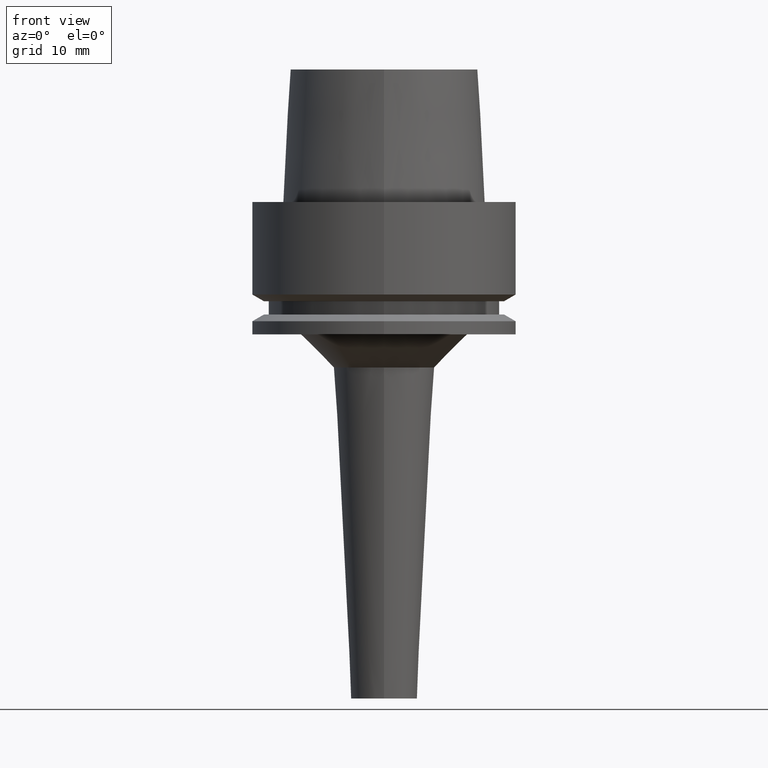
[diagram: clean part render]
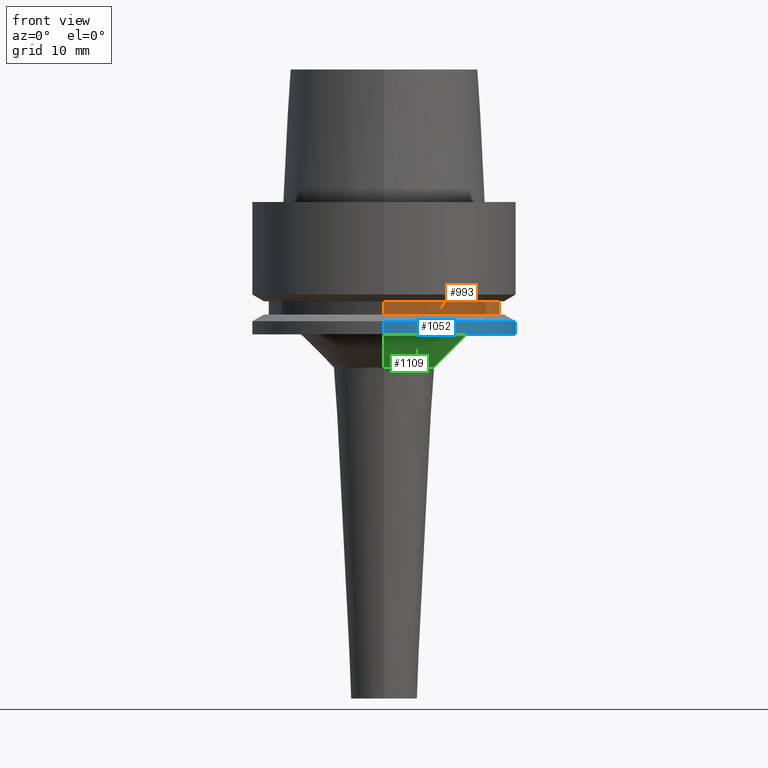
[diagram: same view with three faces highlighted in distinct colors, each labeled with its STEP entity id]
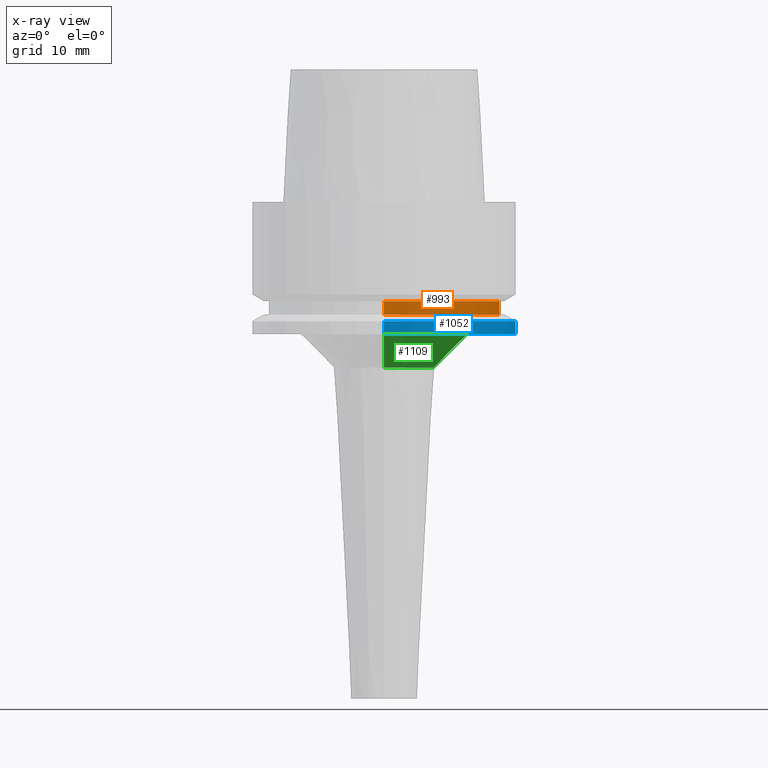
[diagram: x-ray of the same camera — body ghosted, the three highlighted faces saturated]
A machine part, front view with three faces highlighted in distinct colors.
The next image is the same camera in x-ray (body ghosted, the three faces saturated) — at least one of them is partly hidden behind the body in this view.
Their STEP definitions:

[orange] entity #993 — the highlighted cylindrical surface (partial cylindrical patch) has radius 17.4 mm, axis along (0, 0, 1).
#164=CARTESIAN_POINT('',(0.E0,0.E0,-1.5E1));
#165=DIRECTION('',(0.E0,0.E0,-1.E0));
#166=DIRECTION('',(0.E0,1.E0,0.E0));
#167=AXIS2_PLACEMENT_3D('',#164,#165,#166);
#172=DIRECTION('',(0.E0,0.E0,-1.E0));
#173=VECTOR('',#172,2.E0);
#174=CARTESIAN_POINT('',(0.E0,-1.74E1,-1.5E1));
#175=LINE('',#174,#173);
#179=DIRECTION('',(0.E0,0.E0,-1.E0));
#180=VECTOR('',#179,2.E0);
#181=CARTESIAN_POINT('',(0.E0,1.74E1,-1.5E1));
#182=LINE('',#181,#180);
#202=CARTESIAN_POINT('',(0.E0,0.E0,-1.7E1));
#203=DIRECTION('',(0.E0,0.E0,1.E0));
#204=DIRECTION('',(0.E0,-1.E0,0.E0));
#205=AXIS2_PLACEMENT_3D('',#202,#203,#204);
#744=CARTESIAN_POINT('',(0.E0,-1.74E1,-1.5E1));
#745=CARTESIAN_POINT('',(0.E0,1.74E1,-1.5E1));
#746=VERTEX_POINT('',#744);
#747=VERTEX_POINT('',#745);
#748=CARTESIAN_POINT('',(0.E0,1.74E1,-1.7E1));
#749=VERTEX_POINT('',#748);
#750=CARTESIAN_POINT('',(0.E0,-1.74E1,-1.7E1));
#751=VERTEX_POINT('',#750);
#981=CARTESIAN_POINT('',(0.E0,0.E0,-7.975E1));
#982=DIRECTION('',(0.E0,0.E0,1.E0));
#983=DIRECTION('',(0.E0,1.E0,0.E0));
#984=AXIS2_PLACEMENT_3D('',#981,#982,#983);
#985=CYLINDRICAL_SURFACE('',#984,1.74E1);
#986=ORIENTED_EDGE('',*,*,#971,.T.);
#988=ORIENTED_EDGE('',*,*,#987,.F.);
#989=ORIENTED_EDGE('',*,*,#974,.F.);
#990=ORIENTED_EDGE('',*,*,#961,.F.);
#991=EDGE_LOOP('',(#986,#988,#989,#990));
#992=FACE_OUTER_BOUND('',#991,.F.);
#168=CIRCLE('',#167,1.74E1);
#206=CIRCLE('',#205,1.74E1);
#961=EDGE_CURVE('',#747,#746,#168,.T.);
#971=EDGE_CURVE('',#747,#749,#182,.T.);
#974=EDGE_CURVE('',#746,#751,#175,.T.);
#987=EDGE_CURVE('',#751,#749,#206,.T.);
#993=ADVANCED_FACE('',(#992),#985,.T.);

[blue] entity #1052 — the highlighted cylindrical surface (partial cylindrical patch) has radius 20 mm, axis along (0, 0, 1).
#240=CARTESIAN_POINT('',(0.E0,0.E0,-1.802072594462E1));
#241=DIRECTION('',(0.E0,0.E0,-1.E0));
#242=DIRECTION('',(0.E0,1.E0,0.E0));
#243=AXIS2_PLACEMENT_3D('',#240,#241,#242);
#248=DIRECTION('',(0.E0,-1.723159621265E-13,-1.E0));
#249=VECTOR('',#248,1.979274055381E0);
#250=CARTESIAN_POINT('',(0.E0,2.E1,-1.802072594462E1));
#251=LINE('',#250,#249);
#255=DIRECTION('',(0.E0,1.723159621265E-13,-1.E0));
#256=VECTOR('',#255,1.979274055381E0);
#257=CARTESIAN_POINT('',(0.E0,-2.E1,-1.802072594462E1));
#258=LINE('',#257,#256);
#262=CARTESIAN_POINT('',(0.E0,0.E0,-2.E1));
#263=DIRECTION('',(0.E0,0.E0,1.E0));
#264=DIRECTION('',(0.E0,-1.E0,0.E0));
#265=AXIS2_PLACEMENT_3D('',#262,#263,#264);
#756=CARTESIAN_POINT('',(0.E0,2.E1,-1.802072594462E1));
#757=VERTEX_POINT('',#756);
#758=CARTESIAN_POINT('',(0.E0,-2.E1,-1.802072594462E1));
#759=VERTEX_POINT('',#758);
#760=CARTESIAN_POINT('',(0.E0,2.E1,-2.E1));
#761=VERTEX_POINT('',#760);
#762=CARTESIAN_POINT('',(0.E0,-2.E1,-2.E1));
#763=VERTEX_POINT('',#762);
#1038=CARTESIAN_POINT('',(0.E0,0.E0,-7.975E1));
#1039=DIRECTION('',(0.E0,0.E0,1.E0));
#1040=DIRECTION('',(0.E0,1.E0,0.E0));
#1041=AXIS2_PLACEMENT_3D('',#1038,#1039,#1040);
#1042=CYLINDRICAL_SURFACE('',#1041,2.E1);
#1044=ORIENTED_EDGE('',*,*,#1043,.T.);
#1046=ORIENTED_EDGE('',*,*,#1045,.F.);
#1048=ORIENTED_EDGE('',*,*,#1047,.F.);
#1049=ORIENTED_EDGE('',*,*,#1031,.F.);
#1050=EDGE_LOOP('',(#1044,#1046,#1048,#1049));
#1051=FACE_OUTER_BOUND('',#1050,.F.);
#244=CIRCLE('',#243,2.E1);
#266=CIRCLE('',#265,2.E1);
#1031=EDGE_CURVE('',#757,#759,#244,.T.);
#1043=EDGE_CURVE('',#757,#761,#251,.T.);
#1045=EDGE_CURVE('',#763,#761,#266,.T.);
#1047=EDGE_CURVE('',#759,#763,#258,.T.);
#1052=ADVANCED_FACE('',(#1051),#1042,.T.);

[green] entity #1109 — the highlighted conical surface has half-angle 45 deg.
#286=CARTESIAN_POINT('',(0.E0,0.E0,-2.E1));
#287=DIRECTION('',(0.E0,0.E0,-1.E0));
#288=DIRECTION('',(0.E0,1.E0,0.E0));
#289=AXIS2_PLACEMENT_3D('',#286,#287,#288);
#294=DIRECTION('',(0.E0,7.071067811865E-1,-7.071067811866E-1));
#295=VECTOR('',#294,7.071067811864E0);
#296=CARTESIAN_POINT('',(0.E0,-1.262038896415E1,-2.E1));
#297=LINE('',#296,#295);
#309=DIRECTION('',(0.E0,-7.071067811865E-1,-7.071067811866E-1));
#310=VECTOR('',#309,7.071067811864E0);
#311=CARTESIAN_POINT('',(0.E0,1.262038896415E1,-2.E1));
#312=LINE('',#311,#310);
#323=CARTESIAN_POINT('',(0.E0,0.E0,-2.5E1));
#324=DIRECTION('',(0.E0,0.E0,1.E0));
#325=DIRECTION('',(0.E0,-1.E0,0.E0));
#326=AXIS2_PLACEMENT_3D('',#323,#324,#325);
#764=CARTESIAN_POINT('',(0.E0,-1.262038896415E1,-2.E1));
#765=CARTESIAN_POINT('',(0.E0,1.262038896415E1,-2.E1));
#766=VERTEX_POINT('',#764);
#767=VERTEX_POINT('',#765);
#768=CARTESIAN_POINT('',(0.E0,7.620388964152E0,-2.5E1));
#769=VERTEX_POINT('',#768);
#770=CARTESIAN_POINT('',(0.E0,-7.620388964152E0,-2.5E1));
#771=VERTEX_POINT('',#770);
#1097=CARTESIAN_POINT('',(0.E0,0.E0,-2.25E1));
#1098=DIRECTION('',(0.E0,0.E0,1.E0));
#1099=DIRECTION('',(0.E0,1.E0,0.E0));
#1100=AXIS2_PLACEMENT_3D('',#1097,#1098,#1099);
#1101=CONICAL_SURFACE('',#1100,1.012038896415E1,4.5E1);
#1102=ORIENTED_EDGE('',*,*,#1087,.T.);
#1104=ORIENTED_EDGE('',*,*,#1103,.F.);
#1105=ORIENTED_EDGE('',*,*,#1090,.F.);
#1106=ORIENTED_EDGE('',*,*,#1077,.F.);
#1107=EDGE_LOOP('',(#1102,#1104,#1105,#1106));
#1108=FACE_OUTER_BOUND('',#1107,.F.);
#290=CIRCLE('',#289,1.262038896415E1);
#327=CIRCLE('',#326,7.620388964152E0);
#1077=EDGE_CURVE('',#767,#766,#290,.T.);
#1087=EDGE_CURVE('',#767,#769,#312,.T.);
#1090=EDGE_CURVE('',#766,#771,#297,.T.);
#1103=EDGE_CURVE('',#771,#769,#327,.T.);
#1109=ADVANCED_FACE('',(#1108),#1101,.T.);